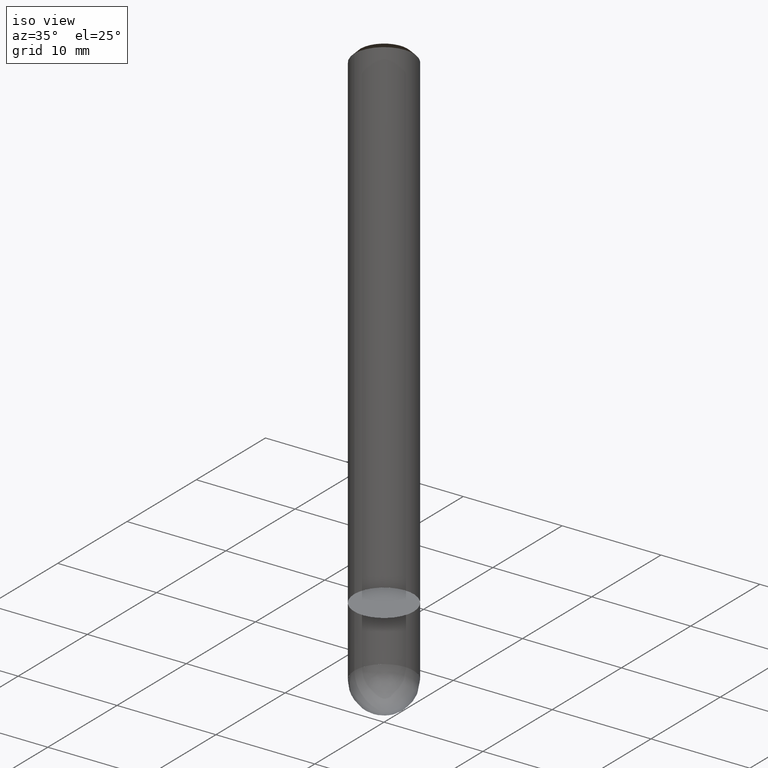
[diagram: clean part render]
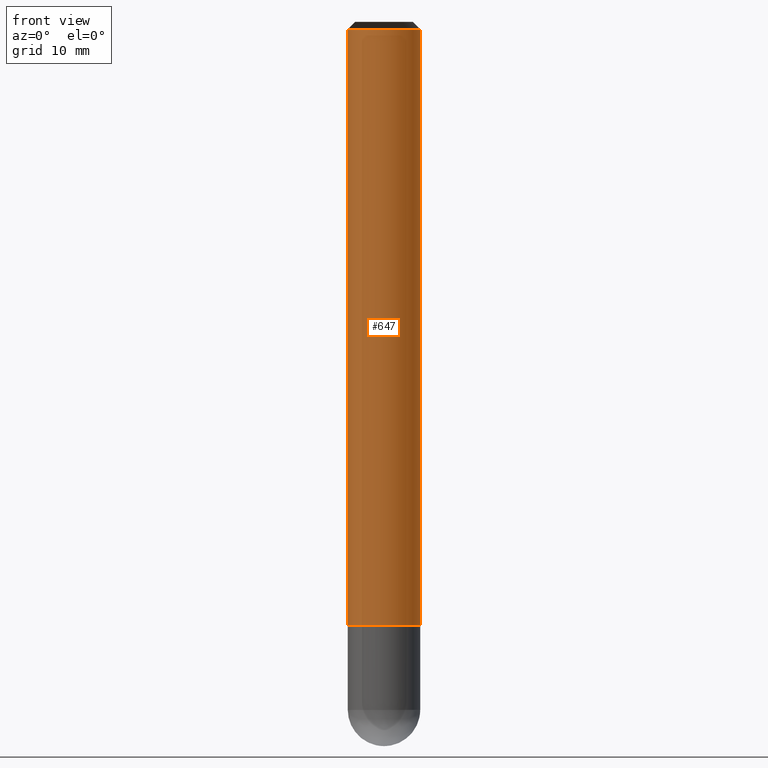
[diagram: tour spotlight — one face highlighted and labeled with its STEP entity id]
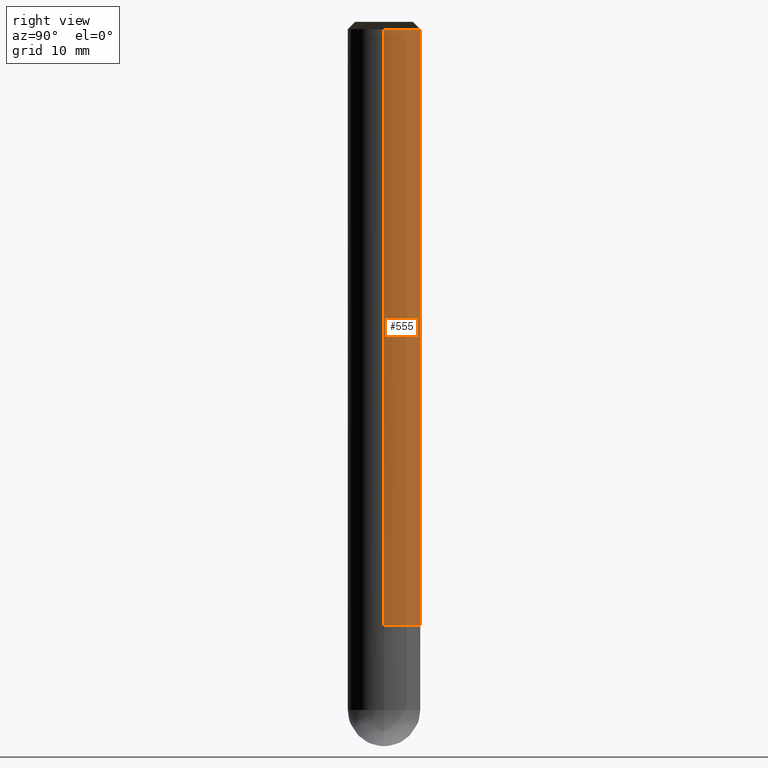
[diagram: tour spotlight — one face highlighted and labeled with its STEP entity id]
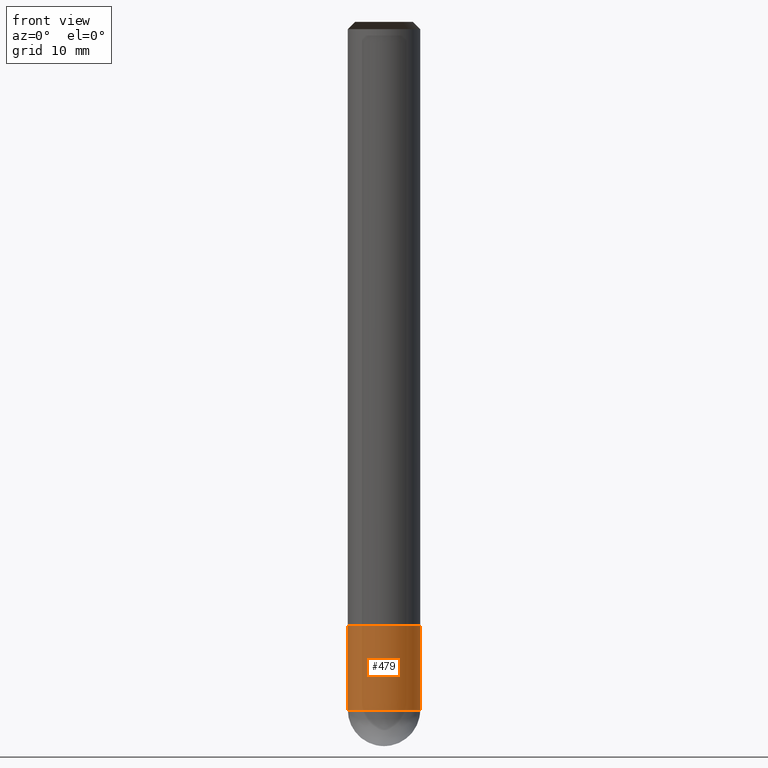
[diagram: tour spotlight — one face highlighted and labeled with its STEP entity id]
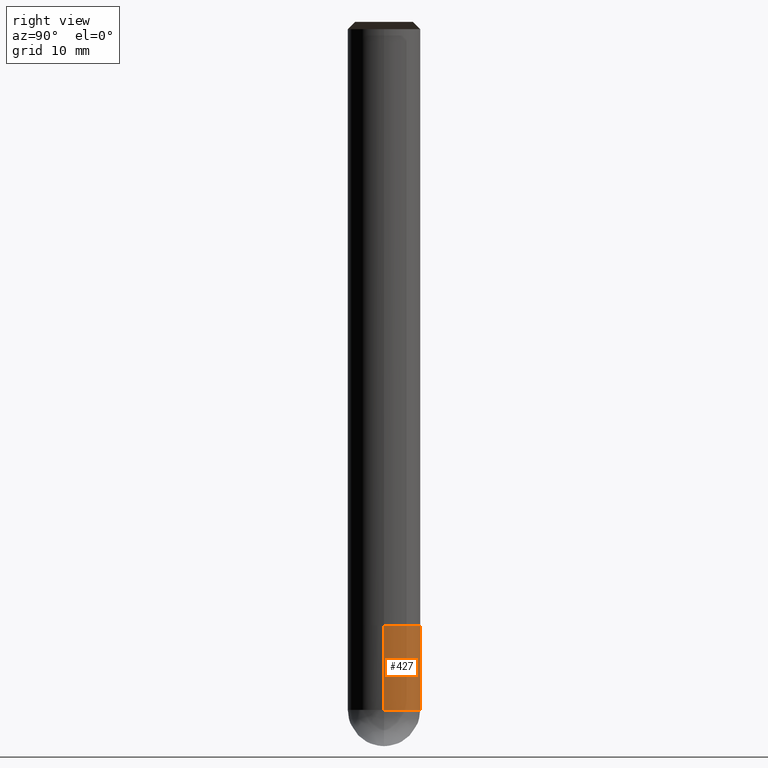
[diagram: tour spotlight — one face highlighted and labeled with its STEP entity id]
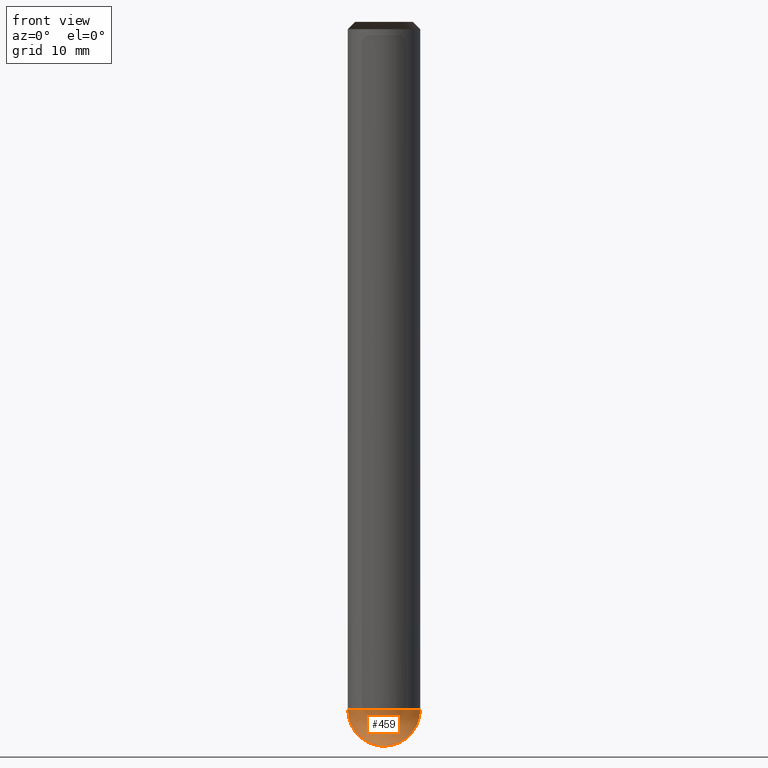
[diagram: tour spotlight — one face highlighted and labeled with its STEP entity id]
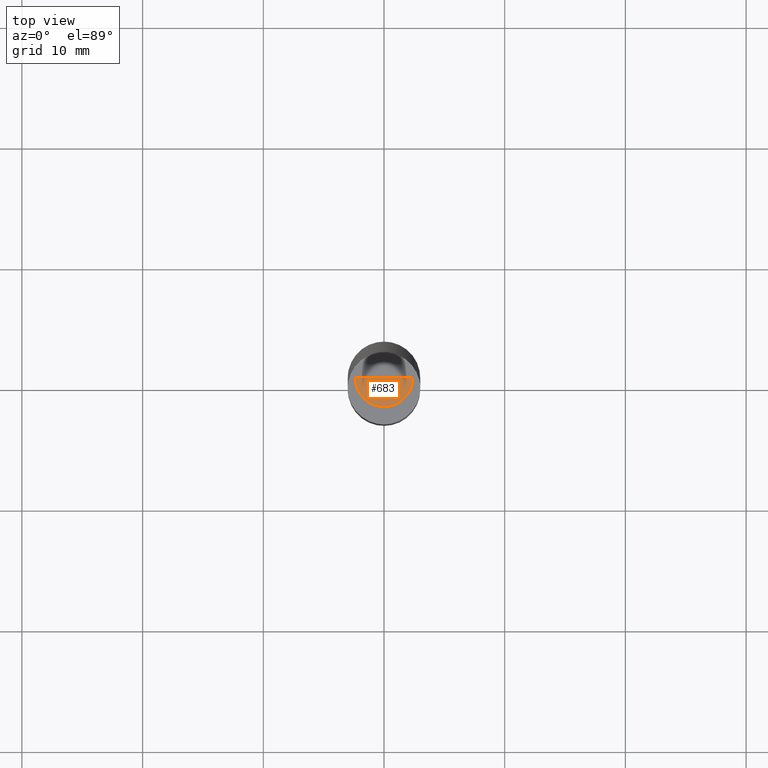
[diagram: tour spotlight — one face highlighted and labeled with its STEP entity id]
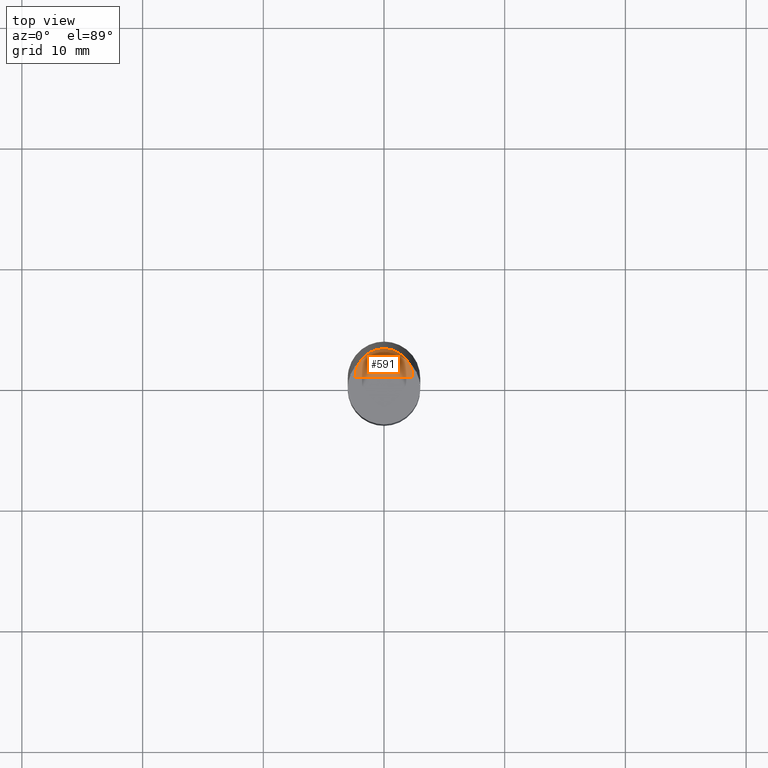
[diagram: tour spotlight — one face highlighted and labeled with its STEP entity id]
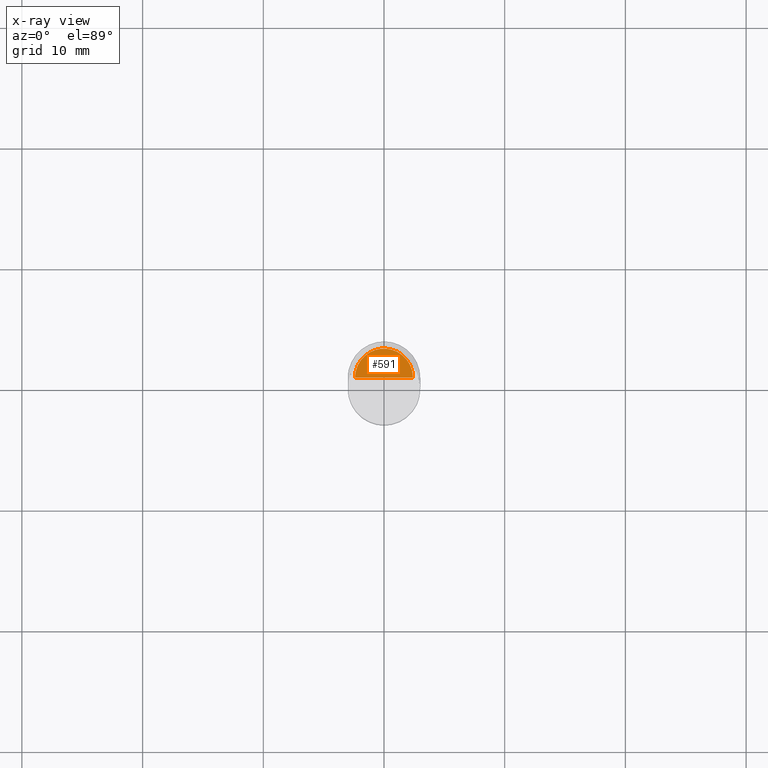
[diagram: x-ray of the same camera — body ghosted, this tour face saturated]
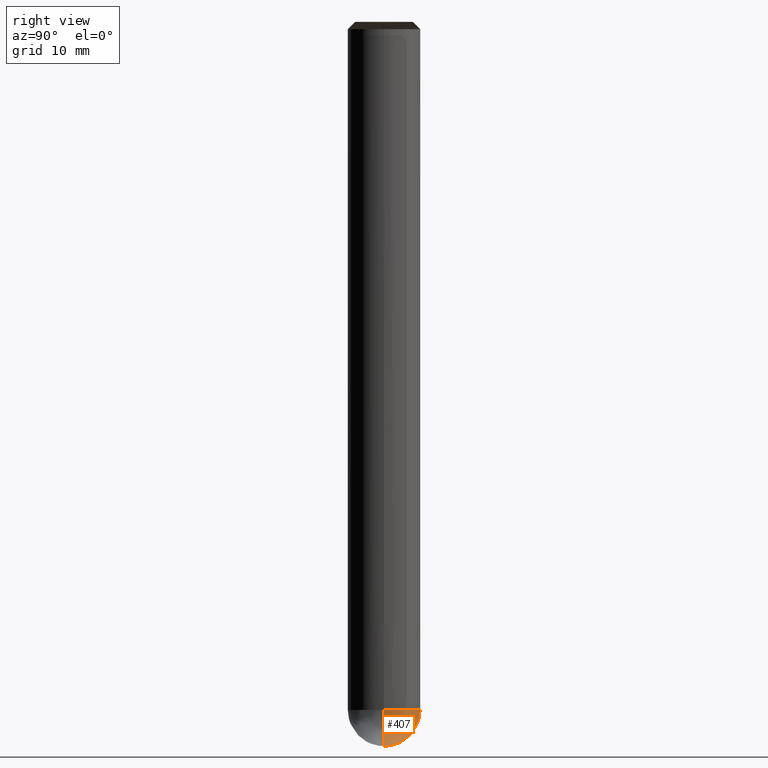
[diagram: tour spotlight — one face highlighted and labeled with its STEP entity id]
A machine part: a face-by-face anatomy tour. The part has 16 B-rep faces; the first image is the clean iso view, then the 8 largest visible faces are spotlighted one at a time (largest first), each with its STEP entity span.

Face 1 — front view, entity #647. In plain terms, the highlighted face is a freeform B-spline surface patch.
Definition (entity closure, byte-faithful):
#362=CARTESIAN_POINT('',(3.0,0.0,0.0));
#366=CARTESIAN_POINT('',(-3.0,0.0,0.0));
#367=CARTESIAN_POINT('',(3.0,0.0,49.399));
#371=CARTESIAN_POINT('',(-3.0,0.0,49.399));
#378=CARTESIAN_POINT('',(-3.0,-3.0,0.0));
#379=CARTESIAN_POINT('',(0.0,-3.0,0.0));
#380=CARTESIAN_POINT('',(3.0,-3.0,0.0));
#381=CARTESIAN_POINT('',(-3.0,-3.0,49.399));
#382=CARTESIAN_POINT('',(0.0,-3.0,49.399));
#383=CARTESIAN_POINT('',(3.0,-3.0,49.399));
#628=(
BOUNDED_SURFACE()
B_SPLINE_SURFACE(1,2,(
(#366,#378,#379,#380,#362),
(#371,#381,#382,#383,#367)
), .UNSPECIFIED.,.F.,.F.,.F.)
B_SPLINE_SURFACE_WITH_KNOTS((2,2),(3,2,3),(
0.0,1.0),(
0.0,0.5,1.0), .UNSPECIFIED.)
GEOMETRIC_REPRESENTATION_ITEM()
RATIONAL_B_SPLINE_SURFACE(((1.0,0.707106781187,1.0,0.707106781187,1.0),
(1.0,0.707106781187,1.0,0.707106781187,1.0)
))
REPRESENTATION_ITEM('')
SURFACE()
);
#629=(
BOUNDED_CURVE()
B_SPLINE_CURVE(1,(#371,#366),.UNSPECIFIED.,.F.,.F.)
B_SPLINE_CURVE_WITH_KNOTS((2,2),
(0.0,1.0),.UNSPECIFIED.)
CURVE()
GEOMETRIC_REPRESENTATION_ITEM()
RATIONAL_B_SPLINE_CURVE((1.0,1.0))
REPRESENTATION_ITEM('')
);
#630=(
BOUNDED_CURVE()
B_SPLINE_CURVE(2,(#366,#378,#379,#380,#362),.UNSPECIFIED.,.F.,.F.)
B_SPLINE_CURVE_WITH_KNOTS((3,2,3),
(0.0,0.5,1.0),.UNSPECIFIED.)
CURVE()
GEOMETRIC_REPRESENTATION_ITEM()
RATIONAL_B_SPLINE_CURVE((1.0,0.707106781187,1.0,0.707106781187,1.0))
REPRESENTATION_ITEM('')
);
#631=(
BOUNDED_CURVE()
B_SPLINE_CURVE(1,(#362,#367),.UNSPECIFIED.,.F.,.F.)
B_SPLINE_CURVE_WITH_KNOTS((2,2),
(0.0,1.0),.UNSPECIFIED.)
CURVE()
GEOMETRIC_REPRESENTATION_ITEM()
RATIONAL_B_SPLINE_CURVE((1.0,1.0))
REPRESENTATION_ITEM('')
);
#632=(
BOUNDED_CURVE()
B_SPLINE_CURVE(2,(#367,#383,#382,#381,#371),.UNSPECIFIED.,.F.,.F.)
B_SPLINE_CURVE_WITH_KNOTS((3,2,3),
(0.0,0.5,1.0),.UNSPECIFIED.)
CURVE()
GEOMETRIC_REPRESENTATION_ITEM()
RATIONAL_B_SPLINE_CURVE((1.0,0.707106781187,1.0,0.707106781187,1.0))
REPRESENTATION_ITEM('')
);
#633=VERTEX_POINT('',#362);
#634=VERTEX_POINT('',#366);
#635=VERTEX_POINT('',#367);
#636=VERTEX_POINT('',#371);
#637=EDGE_CURVE('',#636,#634,#629,.T.);
#638=EDGE_CURVE('',#634,#633,#630,.T.);
#639=EDGE_CURVE('',#633,#635,#631,.T.);
#640=EDGE_CURVE('',#635,#636,#632,.T.);
#641=ORIENTED_EDGE('',*,*,#637,.T.);
#642=ORIENTED_EDGE('',*,*,#638,.T.);
#643=ORIENTED_EDGE('',*,*,#639,.T.);
#644=ORIENTED_EDGE('',*,*,#640,.T.);
#645=EDGE_LOOP('',(#641,#642,#643,#644));
#646=FACE_OUTER_BOUND('',#645,.T.);
#647=ADVANCED_FACE('',(#646),#628,.T.);

Face 2 — right view, entity #555. In plain terms, the highlighted face is a freeform B-spline surface patch.
Definition (entity closure, byte-faithful):
#362=CARTESIAN_POINT('',(3.0,0.0,0.0));
#363=CARTESIAN_POINT('',(3.0,3.0,0.0));
#364=CARTESIAN_POINT('',(0.0,3.0,0.0));
#365=CARTESIAN_POINT('',(-3.0,3.0,0.0));
#366=CARTESIAN_POINT('',(-3.0,0.0,0.0));
#367=CARTESIAN_POINT('',(3.0,0.0,49.399));
#368=CARTESIAN_POINT('',(3.0,3.0,49.399));
#369=CARTESIAN_POINT('',(0.0,3.0,49.399));
#370=CARTESIAN_POINT('',(-3.0,3.0,49.399));
#371=CARTESIAN_POINT('',(-3.0,0.0,49.399));
#536=(
BOUNDED_SURFACE()
B_SPLINE_SURFACE(1,2,(
(#362,#363,#364,#365,#366),
(#367,#368,#369,#370,#371)
), .UNSPECIFIED.,.F.,.F.,.F.)
B_SPLINE_SURFACE_WITH_KNOTS((2,2),(3,2,3),(
0.0,1.0),(
0.0,0.5,1.0), .UNSPECIFIED.)
GEOMETRIC_REPRESENTATION_ITEM()
RATIONAL_B_SPLINE_SURFACE(((1.0,0.707106781187,1.0,0.707106781187,1.0),
(1.0,0.707106781187,1.0,0.707106781187,1.0)
))
REPRESENTATION_ITEM('')
SURFACE()
);
#537=(
BOUNDED_CURVE()
B_SPLINE_CURVE(2,(#367,#368,#369,#370,#371),.UNSPECIFIED.,.F.,.F.)
B_SPLINE_CURVE_WITH_KNOTS((3,2,3),
(0.0,0.5,1.0),.UNSPECIFIED.)
CURVE()
GEOMETRIC_REPRESENTATION_ITEM()
RATIONAL_B_SPLINE_CURVE((1.0,0.707106781187,1.0,0.707106781187,1.0))
REPRESENTATION_ITEM('')
);
#538=(
BOUNDED_CURVE()
B_SPLINE_CURVE(1,(#371,#366),.UNSPECIFIED.,.F.,.F.)
B_SPLINE_CURVE_WITH_KNOTS((2,2),
(0.0,1.0),.UNSPECIFIED.)
CURVE()
GEOMETRIC_REPRESENTATION_ITEM()
RATIONAL_B_SPLINE_CURVE((1.0,1.0))
REPRESENTATION_ITEM('')
);
#539=(
BOUNDED_CURVE()
B_SPLINE_CURVE(2,(#366,#365,#364,#363,#362),.UNSPECIFIED.,.F.,.F.)
B_SPLINE_CURVE_WITH_KNOTS((3,2,3),
(0.0,0.5,1.0),.UNSPECIFIED.)
CURVE()
GEOMETRIC_REPRESENTATION_ITEM()
RATIONAL_B_SPLINE_CURVE((1.0,0.707106781187,1.0,0.707106781187,1.0))
REPRESENTATION_ITEM('')
);
#540=(
BOUNDED_CURVE()
B_SPLINE_CURVE(1,(#362,#367),.UNSPECIFIED.,.F.,.F.)
B_SPLINE_CURVE_WITH_KNOTS((2,2),
(0.0,1.0),.UNSPECIFIED.)
CURVE()
GEOMETRIC_REPRESENTATION_ITEM()
RATIONAL_B_SPLINE_CURVE((1.0,1.0))
REPRESENTATION_ITEM('')
);
#541=VERTEX_POINT('',#362);
#542=VERTEX_POINT('',#366);
#543=VERTEX_POINT('',#367);
#544=VERTEX_POINT('',#371);
#545=EDGE_CURVE('',#543,#544,#537,.T.);
#546=EDGE_CURVE('',#544,#542,#538,.T.);
#547=EDGE_CURVE('',#542,#541,#539,.T.);
#548=EDGE_CURVE('',#541,#543,#540,.T.);
#549=ORIENTED_EDGE('',*,*,#545,.T.);
#550=ORIENTED_EDGE('',*,*,#546,.T.);
#551=ORIENTED_EDGE('',*,*,#547,.T.);
#552=ORIENTED_EDGE('',*,*,#548,.T.);
#553=EDGE_LOOP('',(#549,#550,#551,#552));
#554=FACE_OUTER_BOUND('',#553,.T.);
#555=ADVANCED_FACE('',(#554),#536,.T.);

Face 3 — front view, entity #479. In plain terms, the highlighted face is a freeform B-spline surface patch.
Definition (entity closure, byte-faithful):
#342=CARTESIAN_POINT('',(3.0,0.0,-7.001));
#346=CARTESIAN_POINT('',(-3.0,0.0,-7.001));
#347=CARTESIAN_POINT('',(3.0,0.0,-0.001));
#351=CARTESIAN_POINT('',(-3.0,0.0,-0.001));
#356=CARTESIAN_POINT('',(-3.0,-3.0,-7.001));
#357=CARTESIAN_POINT('',(0.0,-3.0,-7.001));
#358=CARTESIAN_POINT('',(3.0,-3.0,-7.001));
#359=CARTESIAN_POINT('',(-3.0,-3.0,-0.001));
#360=CARTESIAN_POINT('',(0.0,-3.0,-0.001));
#361=CARTESIAN_POINT('',(3.0,-3.0,-0.001));
#460=(
BOUNDED_SURFACE()
B_SPLINE_SURFACE(1,2,(
(#346,#356,#357,#358,#342),
(#351,#359,#360,#361,#347)
), .UNSPECIFIED.,.F.,.F.,.F.)
B_SPLINE_SURFACE_WITH_KNOTS((2,2),(3,2,3),(
0.0,1.0),(
0.0,0.5,1.0), .UNSPECIFIED.)
GEOMETRIC_REPRESENTATION_ITEM()
RATIONAL_B_SPLINE_SURFACE(((1.0,0.707106781187,1.0,0.707106781187,1.0),
(1.0,0.707106781187,1.0,0.707106781187,1.0)
))
REPRESENTATION_ITEM('')
SURFACE()
);
#461=(
BOUNDED_CURVE()
B_SPLINE_CURVE(1,(#351,#346),.UNSPECIFIED.,.F.,.F.)
B_SPLINE_CURVE_WITH_KNOTS((2,2),
(0.0,1.0),.UNSPECIFIED.)
CURVE()
GEOMETRIC_REPRESENTATION_ITEM()
RATIONAL_B_SPLINE_CURVE((1.0,1.0))
REPRESENTATION_ITEM('')
);
#462=(
BOUNDED_CURVE()
B_SPLINE_CURVE(2,(#346,#356,#357,#358,#342),.UNSPECIFIED.,.F.,.F.)
B_SPLINE_CURVE_WITH_KNOTS((3,2,3),
(0.0,0.5,1.0),.UNSPECIFIED.)
CURVE()
GEOMETRIC_REPRESENTATION_ITEM()
RATIONAL_B_SPLINE_CURVE((1.0,0.707106781187,1.0,0.707106781187,1.0))
REPRESENTATION_ITEM('')
);
#463=(
BOUNDED_CURVE()
B_SPLINE_CURVE(1,(#342,#347),.UNSPECIFIED.,.F.,.F.)
B_SPLINE_CURVE_WITH_KNOTS((2,2),
(0.0,1.0),.UNSPECIFIED.)
CURVE()
GEOMETRIC_REPRESENTATION_ITEM()
RATIONAL_B_SPLINE_CURVE((1.0,1.0))
REPRESENTATION_ITEM('')
);
#464=(
BOUNDED_CURVE()
B_SPLINE_CURVE(2,(#347,#361,#360,#359,#351),.UNSPECIFIED.,.F.,.F.)
B_SPLINE_CURVE_WITH_KNOTS((3,2,3),
(0.0,0.5,1.0),.UNSPECIFIED.)
CURVE()
GEOMETRIC_REPRESENTATION_ITEM()
RATIONAL_B_SPLINE_CURVE((1.0,0.707106781187,1.0,0.707106781187,1.0))
REPRESENTATION_ITEM('')
);
#465=VERTEX_POINT('',#342);
#466=VERTEX_POINT('',#346);
#467=VERTEX_POINT('',#347);
#468=VERTEX_POINT('',#351);
#469=EDGE_CURVE('',#468,#466,#461,.T.);
#470=EDGE_CURVE('',#466,#465,#462,.T.);
#471=EDGE_CURVE('',#465,#467,#463,.T.);
#472=EDGE_CURVE('',#467,#468,#464,.T.);
#473=ORIENTED_EDGE('',*,*,#469,.T.);
#474=ORIENTED_EDGE('',*,*,#470,.T.);
#475=ORIENTED_EDGE('',*,*,#471,.T.);
#476=ORIENTED_EDGE('',*,*,#472,.T.);
#477=EDGE_LOOP('',(#473,#474,#475,#476));
#478=FACE_OUTER_BOUND('',#477,.T.);
#479=ADVANCED_FACE('',(#478),#460,.T.);

Face 4 — right view, entity #427. In plain terms, the highlighted face is a freeform B-spline surface patch.
Definition (entity closure, byte-faithful):
#342=CARTESIAN_POINT('',(3.0,0.0,-7.001));
#343=CARTESIAN_POINT('',(3.0,3.0,-7.001));
#344=CARTESIAN_POINT('',(0.0,3.0,-7.001));
#345=CARTESIAN_POINT('',(-3.0,3.0,-7.001));
#346=CARTESIAN_POINT('',(-3.0,0.0,-7.001));
#347=CARTESIAN_POINT('',(3.0,0.0,-0.001));
#348=CARTESIAN_POINT('',(3.0,3.0,-0.001));
#349=CARTESIAN_POINT('',(0.0,3.0,-0.001));
#350=CARTESIAN_POINT('',(-3.0,3.0,-0.001));
#351=CARTESIAN_POINT('',(-3.0,0.0,-0.001));
#408=(
BOUNDED_SURFACE()
B_SPLINE_SURFACE(1,2,(
(#342,#343,#344,#345,#346),
(#347,#348,#349,#350,#351)
), .UNSPECIFIED.,.F.,.F.,.F.)
B_SPLINE_SURFACE_WITH_KNOTS((2,2),(3,2,3),(
0.0,1.0),(
0.0,0.5,1.0), .UNSPECIFIED.)
GEOMETRIC_REPRESENTATION_ITEM()
RATIONAL_B_SPLINE_SURFACE(((1.0,0.707106781187,1.0,0.707106781187,1.0),
(1.0,0.707106781187,1.0,0.707106781187,1.0)
))
REPRESENTATION_ITEM('')
SURFACE()
);
#409=(
BOUNDED_CURVE()
B_SPLINE_CURVE(2,(#347,#348,#349,#350,#351),.UNSPECIFIED.,.F.,.F.)
B_SPLINE_CURVE_WITH_KNOTS((3,2,3),
(0.0,0.5,1.0),.UNSPECIFIED.)
CURVE()
GEOMETRIC_REPRESENTATION_ITEM()
RATIONAL_B_SPLINE_CURVE((1.0,0.707106781187,1.0,0.707106781187,1.0))
REPRESENTATION_ITEM('')
);
#410=(
BOUNDED_CURVE()
B_SPLINE_CURVE(1,(#351,#346),.UNSPECIFIED.,.F.,.F.)
B_SPLINE_CURVE_WITH_KNOTS((2,2),
(0.0,1.0),.UNSPECIFIED.)
CURVE()
GEOMETRIC_REPRESENTATION_ITEM()
RATIONAL_B_SPLINE_CURVE((1.0,1.0))
REPRESENTATION_ITEM('')
);
#411=(
BOUNDED_CURVE()
B_SPLINE_CURVE(2,(#346,#345,#344,#343,#342),.UNSPECIFIED.,.F.,.F.)
B_SPLINE_CURVE_WITH_KNOTS((3,2,3),
(0.0,0.5,1.0),.UNSPECIFIED.)
CURVE()
GEOMETRIC_REPRESENTATION_ITEM()
RATIONAL_B_SPLINE_CURVE((1.0,0.707106781187,1.0,0.707106781187,1.0))
REPRESENTATION_ITEM('')
);
#412=(
BOUNDED_CURVE()
B_SPLINE_CURVE(1,(#342,#347),.UNSPECIFIED.,.F.,.F.)
B_SPLINE_CURVE_WITH_KNOTS((2,2),
(0.0,1.0),.UNSPECIFIED.)
CURVE()
GEOMETRIC_REPRESENTATION_ITEM()
RATIONAL_B_SPLINE_CURVE((1.0,1.0))
REPRESENTATION_ITEM('')
);
#413=VERTEX_POINT('',#342);
#414=VERTEX_POINT('',#346);
#415=VERTEX_POINT('',#347);
#416=VERTEX_POINT('',#351);
#417=EDGE_CURVE('',#415,#416,#409,.T.);
#418=EDGE_CURVE('',#416,#414,#410,.T.);
#419=EDGE_CURVE('',#414,#413,#411,.T.);
#420=EDGE_CURVE('',#413,#415,#412,.T.);
#421=ORIENTED_EDGE('',*,*,#417,.T.);
#422=ORIENTED_EDGE('',*,*,#418,.T.);
#423=ORIENTED_EDGE('',*,*,#419,.T.);
#424=ORIENTED_EDGE('',*,*,#420,.T.);
#425=EDGE_LOOP('',(#421,#422,#423,#424));
#426=FACE_OUTER_BOUND('',#425,.T.);
#427=ADVANCED_FACE('',(#426),#408,.T.);

Face 5 — front view, entity #459. In plain terms, the highlighted face is a freeform B-spline surface patch.
Definition (entity closure, byte-faithful):
#336=CARTESIAN_POINT('',(0.0,0.0,-10.001));
#337=CARTESIAN_POINT('',(3.0,0.0,-10.001));
#341=CARTESIAN_POINT('',(-3.0,0.0,-10.001));
#342=CARTESIAN_POINT('',(3.0,0.0,-7.001));
#346=CARTESIAN_POINT('',(-3.0,0.0,-7.001));
#353=CARTESIAN_POINT('',(-3.0,-3.0,-10.001));
#354=CARTESIAN_POINT('',(0.0,-3.0,-10.001));
#355=CARTESIAN_POINT('',(3.0,-3.0,-10.001));
#356=CARTESIAN_POINT('',(-3.0,-3.0,-7.001));
#357=CARTESIAN_POINT('',(0.0,-3.0,-7.001));
#358=CARTESIAN_POINT('',(3.0,-3.0,-7.001));
#444=(
BOUNDED_SURFACE()
B_SPLINE_SURFACE(2,2,(
(#336,#336,#336,#336,#336),
(#341,#353,#354,#355,#337),
(#346,#356,#357,#358,#342)
), .UNSPECIFIED.,.F.,.F.,.F.)
B_SPLINE_SURFACE_WITH_KNOTS((3,3),(3,2,3),(
0.0,1.0),(
0.0,0.5,1.0), .UNSPECIFIED.)
GEOMETRIC_REPRESENTATION_ITEM()
RATIONAL_B_SPLINE_SURFACE(((1.0,0.707106781187,1.0,0.707106781187,1.0),
(0.707106781187,0.5,0.707106781187,0.5,0.707106781187),
(1.0,0.707106781187,1.0,0.707106781187,1.0)
))
REPRESENTATION_ITEM('')
SURFACE()
);
#445=(
BOUNDED_CURVE()
B_SPLINE_CURVE(2,(#346,#341,#336),.UNSPECIFIED.,.F.,.F.)
B_SPLINE_CURVE_WITH_KNOTS((3,3),
(0.0,1.0),.UNSPECIFIED.)
CURVE()
GEOMETRIC_REPRESENTATION_ITEM()
RATIONAL_B_SPLINE_CURVE((1.0,0.707106781187,1.0))
REPRESENTATION_ITEM('')
);
#446=(
BOUNDED_CURVE()
B_SPLINE_CURVE(2,(#336,#337,#342),.UNSPECIFIED.,.F.,.F.)
B_SPLINE_CURVE_WITH_KNOTS((3,3),
(0.0,1.0),.UNSPECIFIED.)
CURVE()
GEOMETRIC_REPRESENTATION_ITEM()
RATIONAL_B_SPLINE_CURVE((1.0,0.707106781187,1.0))
REPRESENTATION_ITEM('')
);
#447=(
BOUNDED_CURVE()
B_SPLINE_CURVE(2,(#342,#358,#357,#356,#346),.UNSPECIFIED.,.F.,.F.)
B_SPLINE_CURVE_WITH_KNOTS((3,2,3),
(0.0,0.5,1.0),.UNSPECIFIED.)
CURVE()
GEOMETRIC_REPRESENTATION_ITEM()
RATIONAL_B_SPLINE_CURVE((1.0,0.707106781187,1.0,0.707106781187,1.0))
REPRESENTATION_ITEM('')
);
#448=VERTEX_POINT('',#336);
#449=VERTEX_POINT('',#342);
#450=VERTEX_POINT('',#346);
#451=EDGE_CURVE('',#450,#448,#445,.T.);
#452=EDGE_CURVE('',#448,#449,#446,.T.);
#453=EDGE_CURVE('',#449,#450,#447,.T.);
#454=ORIENTED_EDGE('',*,*,#451,.T.);
#455=ORIENTED_EDGE('',*,*,#452,.T.);
#456=ORIENTED_EDGE('',*,*,#453,.T.);
#457=EDGE_LOOP('',(#454,#455,#456));
#458=FACE_OUTER_BOUND('',#457,.T.);
#459=ADVANCED_FACE('',(#458),#444,.T.);

Face 6 — top view, entity #683. In plain terms, the highlighted face is a freeform B-spline surface patch.
Definition (entity closure, byte-faithful):
#372=CARTESIAN_POINT('',(2.4,0.0,49.999));
#376=CARTESIAN_POINT('',(-2.4,0.0,49.999));
#377=CARTESIAN_POINT('',(0.0,0.0,49.999));
#384=CARTESIAN_POINT('',(-2.4,-2.4,49.999));
#385=CARTESIAN_POINT('',(0.0,-2.4,49.999));
#386=CARTESIAN_POINT('',(2.4,-2.4,49.999));
#668=(
BOUNDED_SURFACE()
B_SPLINE_SURFACE(1,2,(
(#376,#384,#385,#386,#372),
(#377,#377,#377,#377,#377)
), .UNSPECIFIED.,.F.,.F.,.F.)
B_SPLINE_SURFACE_WITH_KNOTS((2,2),(3,2,3),(
0.0,1.0),(
0.0,0.5,1.0), .UNSPECIFIED.)
GEOMETRIC_REPRESENTATION_ITEM()
RATIONAL_B_SPLINE_SURFACE(((1.0,0.707106781187,1.0,0.707106781187,1.0),
(1.0,0.707106781187,1.0,0.707106781187,1.0)
))
REPRESENTATION_ITEM('')
SURFACE()
);
#669=(
BOUNDED_CURVE()
B_SPLINE_CURVE(1,(#377,#372),.UNSPECIFIED.,.F.,.F.)
B_SPLINE_CURVE_WITH_KNOTS((2,2),
(0.0,1.0),.UNSPECIFIED.)
CURVE()
GEOMETRIC_REPRESENTATION_ITEM()
RATIONAL_B_SPLINE_CURVE((1.0,1.0))
REPRESENTATION_ITEM('')
);
#670=(
BOUNDED_CURVE()
B_SPLINE_CURVE(2,(#372,#386,#385,#384,#376),.UNSPECIFIED.,.F.,.F.)
B_SPLINE_CURVE_WITH_KNOTS((3,2,3),
(0.0,0.5,1.0),.UNSPECIFIED.)
CURVE()
GEOMETRIC_REPRESENTATION_ITEM()
RATIONAL_B_SPLINE_CURVE((1.0,0.707106781187,1.0,0.707106781187,1.0))
REPRESENTATION_ITEM('')
);
#671=(
BOUNDED_CURVE()
B_SPLINE_CURVE(1,(#376,#377),.UNSPECIFIED.,.F.,.F.)
B_SPLINE_CURVE_WITH_KNOTS((2,2),
(0.0,1.0),.UNSPECIFIED.)
CURVE()
GEOMETRIC_REPRESENTATION_ITEM()
RATIONAL_B_SPLINE_CURVE((1.0,1.0))
REPRESENTATION_ITEM('')
);
#672=VERTEX_POINT('',#372);
#673=VERTEX_POINT('',#376);
#674=VERTEX_POINT('',#377);
#675=EDGE_CURVE('',#674,#672,#669,.T.);
#676=EDGE_CURVE('',#672,#673,#670,.T.);
#677=EDGE_CURVE('',#673,#674,#671,.T.);
#678=ORIENTED_EDGE('',*,*,#675,.T.);
#679=ORIENTED_EDGE('',*,*,#676,.T.);
#680=ORIENTED_EDGE('',*,*,#677,.T.);
#681=EDGE_LOOP('',(#678,#679,#680));
#682=FACE_OUTER_BOUND('',#681,.T.);
#683=ADVANCED_FACE('',(#682),#668,.T.);

Face 7 — top view, entity #591. An x-ray twin of the same camera follows (body ghosted, this face saturated) — the face is partly hidden behind the body. In plain terms, the highlighted face is a freeform B-spline surface patch.
Definition (entity closure, byte-faithful):
#372=CARTESIAN_POINT('',(2.4,0.0,49.999));
#373=CARTESIAN_POINT('',(2.4,2.4,49.999));
#374=CARTESIAN_POINT('',(0.0,2.4,49.999));
#375=CARTESIAN_POINT('',(-2.4,2.4,49.999));
#376=CARTESIAN_POINT('',(-2.4,0.0,49.999));
#377=CARTESIAN_POINT('',(0.0,0.0,49.999));
#576=(
BOUNDED_SURFACE()
B_SPLINE_SURFACE(1,2,(
(#372,#373,#374,#375,#376),
(#377,#377,#377,#377,#377)
), .UNSPECIFIED.,.F.,.F.,.F.)
B_SPLINE_SURFACE_WITH_KNOTS((2,2),(3,2,3),(
0.0,1.0),(
0.0,0.5,1.0), .UNSPECIFIED.)
GEOMETRIC_REPRESENTATION_ITEM()
RATIONAL_B_SPLINE_SURFACE(((1.0,0.707106781187,1.0,0.707106781187,1.0),
(1.0,0.707106781187,1.0,0.707106781187,1.0)
))
REPRESENTATION_ITEM('')
SURFACE()
);
#577=(
BOUNDED_CURVE()
B_SPLINE_CURVE(1,(#377,#372),.UNSPECIFIED.,.F.,.F.)
B_SPLINE_CURVE_WITH_KNOTS((2,2),
(0.0,1.0),.UNSPECIFIED.)
CURVE()
GEOMETRIC_REPRESENTATION_ITEM()
RATIONAL_B_SPLINE_CURVE((1.0,1.0))
REPRESENTATION_ITEM('')
);
#578=(
BOUNDED_CURVE()
B_SPLINE_CURVE(2,(#372,#373,#374,#375,#376),.UNSPECIFIED.,.F.,.F.)
B_SPLINE_CURVE_WITH_KNOTS((3,2,3),
(0.0,0.5,1.0),.UNSPECIFIED.)
CURVE()
GEOMETRIC_REPRESENTATION_ITEM()
RATIONAL_B_SPLINE_CURVE((1.0,0.707106781187,1.0,0.707106781187,1.0))
REPRESENTATION_ITEM('')
);
#579=(
BOUNDED_CURVE()
B_SPLINE_CURVE(1,(#376,#377),.UNSPECIFIED.,.F.,.F.)
B_SPLINE_CURVE_WITH_KNOTS((2,2),
(0.0,1.0),.UNSPECIFIED.)
CURVE()
GEOMETRIC_REPRESENTATION_ITEM()
RATIONAL_B_SPLINE_CURVE((1.0,1.0))
REPRESENTATION_ITEM('')
);
#580=VERTEX_POINT('',#372);
#581=VERTEX_POINT('',#376);
#582=VERTEX_POINT('',#377);
#583=EDGE_CURVE('',#582,#580,#577,.T.);
#584=EDGE_CURVE('',#580,#581,#578,.T.);
#585=EDGE_CURVE('',#581,#582,#579,.T.);
#586=ORIENTED_EDGE('',*,*,#583,.T.);
#587=ORIENTED_EDGE('',*,*,#584,.T.);
#588=ORIENTED_EDGE('',*,*,#585,.T.);
#589=EDGE_LOOP('',(#586,#587,#588));
#590=FACE_OUTER_BOUND('',#589,.T.);
#591=ADVANCED_FACE('',(#590),#576,.T.);

Face 8 — right view, entity #407. In plain terms, the highlighted face is a freeform B-spline surface patch.
Definition (entity closure, byte-faithful):
#336=CARTESIAN_POINT('',(0.0,0.0,-10.001));
#337=CARTESIAN_POINT('',(3.0,0.0,-10.001));
#338=CARTESIAN_POINT('',(3.0,3.0,-10.001));
#339=CARTESIAN_POINT('',(0.0,3.0,-10.001));
#340=CARTESIAN_POINT('',(-3.0,3.0,-10.001));
#341=CARTESIAN_POINT('',(-3.0,0.0,-10.001));
#342=CARTESIAN_POINT('',(3.0,0.0,-7.001));
#343=CARTESIAN_POINT('',(3.0,3.0,-7.001));
#344=CARTESIAN_POINT('',(0.0,3.0,-7.001));
#345=CARTESIAN_POINT('',(-3.0,3.0,-7.001));
#346=CARTESIAN_POINT('',(-3.0,0.0,-7.001));
#392=(
BOUNDED_SURFACE()
B_SPLINE_SURFACE(2,2,(
(#336,#336,#336,#336,#336),
(#337,#338,#339,#340,#341),
(#342,#343,#344,#345,#346)
), .UNSPECIFIED.,.F.,.F.,.F.)
B_SPLINE_SURFACE_WITH_KNOTS((3,3),(3,2,3),(
0.0,1.0),(
0.0,0.5,1.0), .UNSPECIFIED.)
GEOMETRIC_REPRESENTATION_ITEM()
RATIONAL_B_SPLINE_SURFACE(((1.0,0.707106781187,1.0,0.707106781187,1.0),
(0.707106781187,0.5,0.707106781187,0.5,0.707106781187),
(1.0,0.707106781187,1.0,0.707106781187,1.0)
))
REPRESENTATION_ITEM('')
SURFACE()
);
#393=(
BOUNDED_CURVE()
B_SPLINE_CURVE(2,(#342,#343,#344,#345,#346),.UNSPECIFIED.,.F.,.F.)
B_SPLINE_CURVE_WITH_KNOTS((3,2,3),
(0.0,0.5,1.0),.UNSPECIFIED.)
CURVE()
GEOMETRIC_REPRESENTATION_ITEM()
RATIONAL_B_SPLINE_CURVE((1.0,0.707106781187,1.0,0.707106781187,1.0))
REPRESENTATION_ITEM('')
);
#394=(
BOUNDED_CURVE()
B_SPLINE_CURVE(2,(#346,#341,#336),.UNSPECIFIED.,.F.,.F.)
B_SPLINE_CURVE_WITH_KNOTS((3,3),
(0.0,1.0),.UNSPECIFIED.)
CURVE()
GEOMETRIC_REPRESENTATION_ITEM()
RATIONAL_B_SPLINE_CURVE((1.0,0.707106781187,1.0))
REPRESENTATION_ITEM('')
);
#395=(
BOUNDED_CURVE()
B_SPLINE_CURVE(2,(#336,#337,#342),.UNSPECIFIED.,.F.,.F.)
B_SPLINE_CURVE_WITH_KNOTS((3,3),
(0.0,1.0),.UNSPECIFIED.)
CURVE()
GEOMETRIC_REPRESENTATION_ITEM()
RATIONAL_B_SPLINE_CURVE((1.0,0.707106781187,1.0))
REPRESENTATION_ITEM('')
);
#396=VERTEX_POINT('',#336);
#397=VERTEX_POINT('',#342);
#398=VERTEX_POINT('',#346);
#399=EDGE_CURVE('',#397,#398,#393,.T.);
#400=EDGE_CURVE('',#398,#396,#394,.T.);
#401=EDGE_CURVE('',#396,#397,#395,.T.);
#402=ORIENTED_EDGE('',*,*,#399,.T.);
#403=ORIENTED_EDGE('',*,*,#400,.T.);
#404=ORIENTED_EDGE('',*,*,#401,.T.);
#405=EDGE_LOOP('',(#402,#403,#404));
#406=FACE_OUTER_BOUND('',#405,.T.);
#407=ADVANCED_FACE('',(#406),#392,.T.);